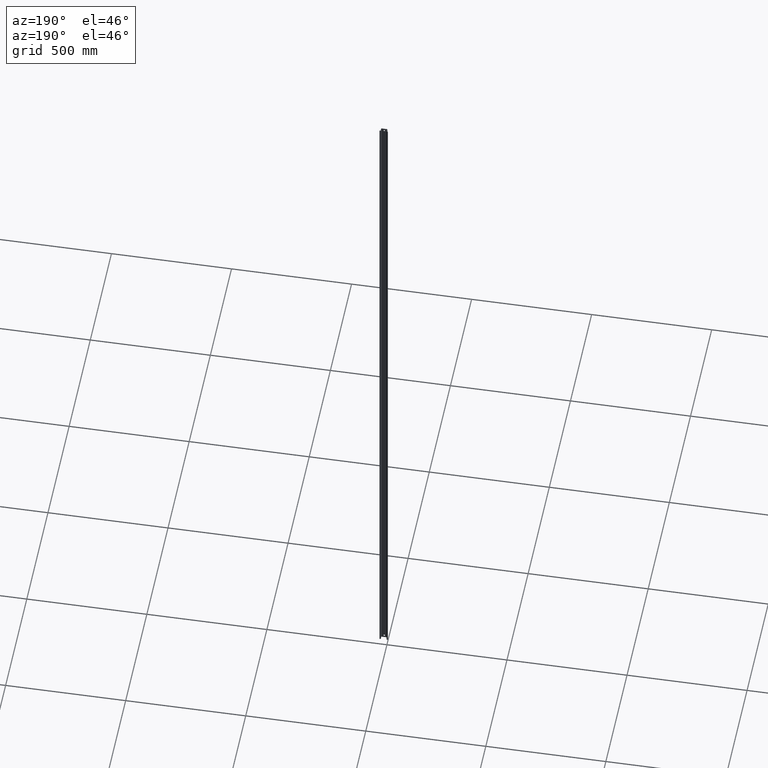
[diagram: clean part render]
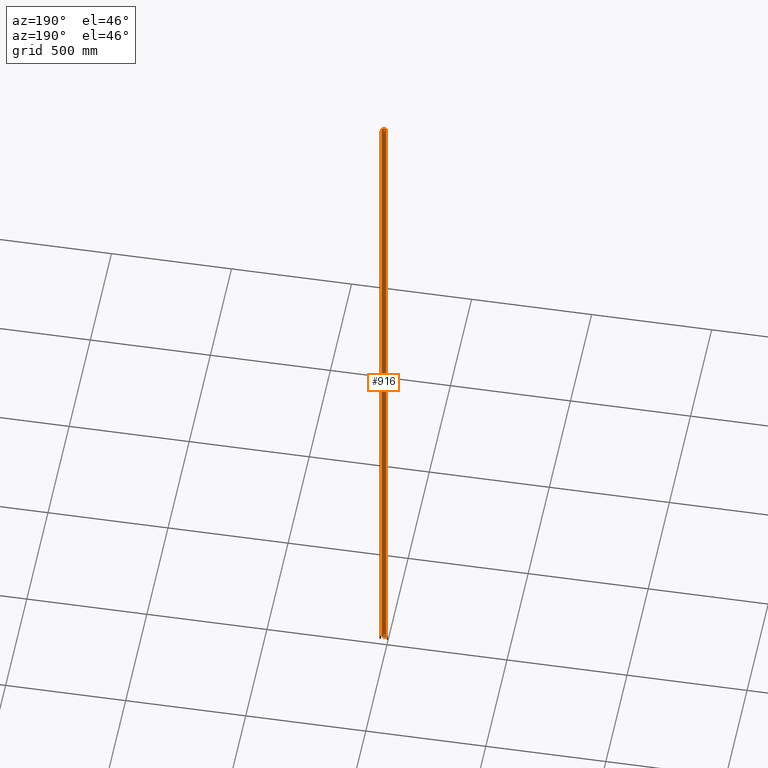
[diagram: same view with one face highlighted and labeled with its STEP entity id]
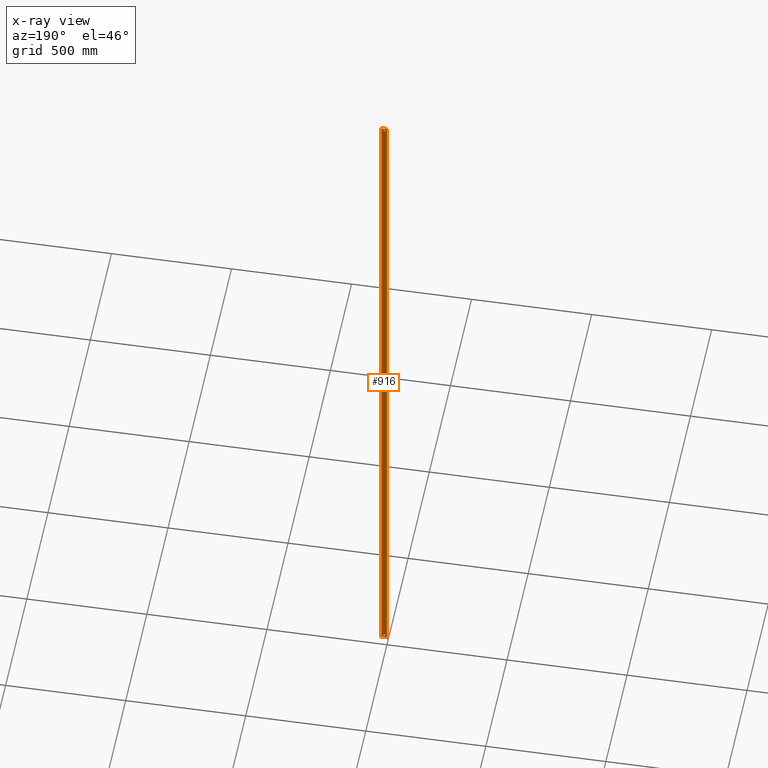
[diagram: x-ray of the same camera — body ghosted, the highlighted face saturated]
A machine part, auxiliary view. The second image highlights one B-rep face of the part: STEP entity #916.
The next image is the same camera in x-ray: the body ghosted, the highlighted face saturated — about 0% of this face is hidden behind the body in this view.
In plain terms, the highlighted planar face has unit normal (0, 1, 0).
Its self-contained STEP definition (entity closure, byte-faithful):
#1 = CARTESIAN_POINT ( 'NONE',  ( 10.80000000000001500, 1.500000000000001300, 6.750000000000008000 ) ) ;
#11 = CARTESIAN_POINT ( 'NONE',  ( 21.60000000000014700, 1.500000000000001300, 0.0000000000000000000 ) ) ;
#15 = CARTESIAN_POINT ( 'NONE',  ( 0.0000000000000000000, 1.500000000000001300, 0.0000000000000000000 ) ) ;
#22 = CARTESIAN_POINT ( 'NONE',  ( 10.80000000000001500, 1.500000000000001300, 2986.750000000000500 ) ) ;
#24 = CARTESIAN_POINT ( 'NONE',  ( 10.80000000000001500, 1.500000000000001300, 13.25000000000001100 ) ) ;
#38 = CARTESIAN_POINT ( 'NONE',  ( 21.60000000000014700, 1.500000000000001300, 3000.000000000000000 ) ) ;
#40 = CARTESIAN_POINT ( 'NONE',  ( 0.0000000000000000000, 1.500000000000001300, 3000.000000000000000 ) ) ;
#149 = DIRECTION ( 'NONE',  ( 0.0000000000000000000, 1.000000000000000000, 0.0000000000000000000 ) ) ;
#151 = FACE_OUTER_BOUND ( 'NONE', #225, .T. ) ;
#156 = DIRECTION ( 'NONE',  ( 0.0000000000000000000, -0.0000000000000000000, 1.000000000000000000 ) ) ;
#171 = FACE_BOUND ( 'NONE', #227, .T. ) ;
#173 = PLANE ( 'NONE',  #681 ) ;
#176 = FACE_BOUND ( 'NONE', #213, .T. ) ;
#177 = CARTESIAN_POINT ( 'NONE',  ( 10.49461781091140900, 1.500000000000001300, 3000.000000000000000 ) ) ;
#213 = EDGE_LOOP ( 'NONE', ( #307, #295 ) ) ;
#225 = EDGE_LOOP ( 'NONE', ( #318, #314, #308, #343 ) ) ;
#227 = EDGE_LOOP ( 'NONE', ( #306, #324 ) ) ;
#239 = VERTEX_POINT ( 'NONE', #348 ) ;
#247 = VERTEX_POINT ( 'NONE', #15 ) ;
#253 = VERTEX_POINT ( 'NONE', #22 ) ;
#256 = VERTEX_POINT ( 'NONE', #11 ) ;
#257 = VERTEX_POINT ( 'NONE', #1 ) ;
#258 = VERTEX_POINT ( 'NONE', #24 ) ;
#264 = VERTEX_POINT ( 'NONE', #38 ) ;
#265 = VERTEX_POINT ( 'NONE', #40 ) ;
#295 = ORIENTED_EDGE ( 'NONE', *, *, #986, .F. ) ;
#306 = ORIENTED_EDGE ( 'NONE', *, *, #934, .F. ) ;
#307 = ORIENTED_EDGE ( 'NONE', *, *, #967, .F. ) ;
#308 = ORIENTED_EDGE ( 'NONE', *, *, #941, .T. ) ;
#314 = ORIENTED_EDGE ( 'NONE', *, *, #951, .F. ) ;
#318 = ORIENTED_EDGE ( 'NONE', *, *, #949, .F. ) ;
#324 = ORIENTED_EDGE ( 'NONE', *, *, #963, .F. ) ;
#343 = ORIENTED_EDGE ( 'NONE', *, *, #971, .T. ) ;
#348 = CARTESIAN_POINT ( 'NONE',  ( 10.80000000000001500, 1.500000000000001300, 2993.250000000000000 ) ) ;
#434 = VECTOR ( 'NONE', #562, 1000.000000000000000 ) ;
#438 = VECTOR ( 'NONE', #603, 1000.000000000000000 ) ;
#441 = VECTOR ( 'NONE', #585, 1000.000000000000000 ) ;
#455 = CIRCLE ( 'NONE', #463, 3.249999999999975100 ) ;
#463 = AXIS2_PLACEMENT_3D ( 'NONE', #523, #538, #544 ) ;
#468 = CIRCLE ( 'NONE', #475, 3.249999999999975100 ) ;
#473 = CIRCLE ( 'NONE', #484, 3.250000000000001300 ) ;
#475 = AXIS2_PLACEMENT_3D ( 'NONE', #627, #618, #657 ) ;
#484 = AXIS2_PLACEMENT_3D ( 'NONE', #628, #624, #641 ) ;
#523 = CARTESIAN_POINT ( 'NONE',  ( 10.80000000000001500, 1.500000000000001300, 2990.000000000000000 ) ) ;
#538 = DIRECTION ( 'NONE',  ( 0.0000000000000000000, 1.000000000000000000, 0.0000000000000000000 ) ) ;
#544 = DIRECTION ( 'NONE',  ( 0.0000000000000000000, 0.0000000000000000000, 1.000000000000000000 ) ) ;
#551 = CARTESIAN_POINT ( 'NONE',  ( 10.49461781091140900, 1.500000000000001300, 3000.000000000000000 ) ) ;
#553 = LINE ( 'NONE', #551, #434 ) ;
#562 = DIRECTION ( 'NONE',  ( 1.000000000000000000, 0.0000000000000000000, 0.0000000000000000000 ) ) ;
#572 = LINE ( 'NONE', #578, #438 ) ;
#578 = CARTESIAN_POINT ( 'NONE',  ( 10.49461781091140900, 1.500000000000001300, 0.0000000000000000000 ) ) ;
#585 = DIRECTION ( 'NONE',  ( -0.0000000000000000000, -0.0000000000000000000, -1.000000000000000000 ) ) ;
#586 = CARTESIAN_POINT ( 'NONE',  ( 0.0000000000000000000, 1.500000000000001300, 3000.000000000000000 ) ) ;
#599 = LINE ( 'NONE', #586, #441 ) ;
#603 = DIRECTION ( 'NONE',  ( 1.000000000000000000, 0.0000000000000000000, 0.0000000000000000000 ) ) ;
#618 = DIRECTION ( 'NONE',  ( 0.0000000000000000000, 1.000000000000000000, 0.0000000000000000000 ) ) ;
#624 = DIRECTION ( 'NONE',  ( -0.0000000000000000000, 1.000000000000000000, -0.0000000000000000000 ) ) ;
#625 = DIRECTION ( 'NONE',  ( -0.0000000000000000000, -0.0000000000000000000, -1.000000000000000000 ) ) ;
#627 = CARTESIAN_POINT ( 'NONE',  ( 10.80000000000001500, 1.500000000000001300, 2990.000000000000000 ) ) ;
#628 = CARTESIAN_POINT ( 'NONE',  ( 10.80000000000001500, 1.500000000000001300, 10.00000000000000900 ) ) ;
#641 = DIRECTION ( 'NONE',  ( 0.0000000000000000000, 0.0000000000000000000, -1.000000000000000000 ) ) ;
#651 = LINE ( 'NONE', #655, #739 ) ;
#655 = CARTESIAN_POINT ( 'NONE',  ( 21.60000000000014700, 1.500000000000001300, 3000.000000000000000 ) ) ;
#657 = DIRECTION ( 'NONE',  ( 0.0000000000000000000, 0.0000000000000000000, 1.000000000000000000 ) ) ;
#681 = AXIS2_PLACEMENT_3D ( 'NONE', #177, #149, #156 ) ;
#739 = VECTOR ( 'NONE', #625, 1000.000000000000000 ) ;
#742 = AXIS2_PLACEMENT_3D ( 'NONE', #854, #835, #851 ) ;
#753 = CIRCLE ( 'NONE', #742, 3.250000000000001300 ) ;
#835 = DIRECTION ( 'NONE',  ( -0.0000000000000000000, 1.000000000000000000, -0.0000000000000000000 ) ) ;
#851 = DIRECTION ( 'NONE',  ( 0.0000000000000000000, 0.0000000000000000000, -1.000000000000000000 ) ) ;
#854 = CARTESIAN_POINT ( 'NONE',  ( 10.80000000000001500, 1.500000000000001300, 10.00000000000000900 ) ) ;
#916 = ADVANCED_FACE ( 'NONE', ( #176, #171, #151 ), #173, .T. ) ;
#934 = EDGE_CURVE ( 'NONE', #239, #253, #455, .T. ) ;
#941 = EDGE_CURVE ( 'NONE', #265, #264, #553, .T. ) ;
#949 = EDGE_CURVE ( 'NONE', #247, #256, #572, .T. ) ;
#951 = EDGE_CURVE ( 'NONE', #265, #247, #599, .T. ) ;
#963 = EDGE_CURVE ( 'NONE', #253, #239, #468, .T. ) ;
#967 = EDGE_CURVE ( 'NONE', #258, #257, #473, .T. ) ;
#971 = EDGE_CURVE ( 'NONE', #264, #256, #651, .T. ) ;
#986 = EDGE_CURVE ( 'NONE', #257, #258, #753, .T. ) ;